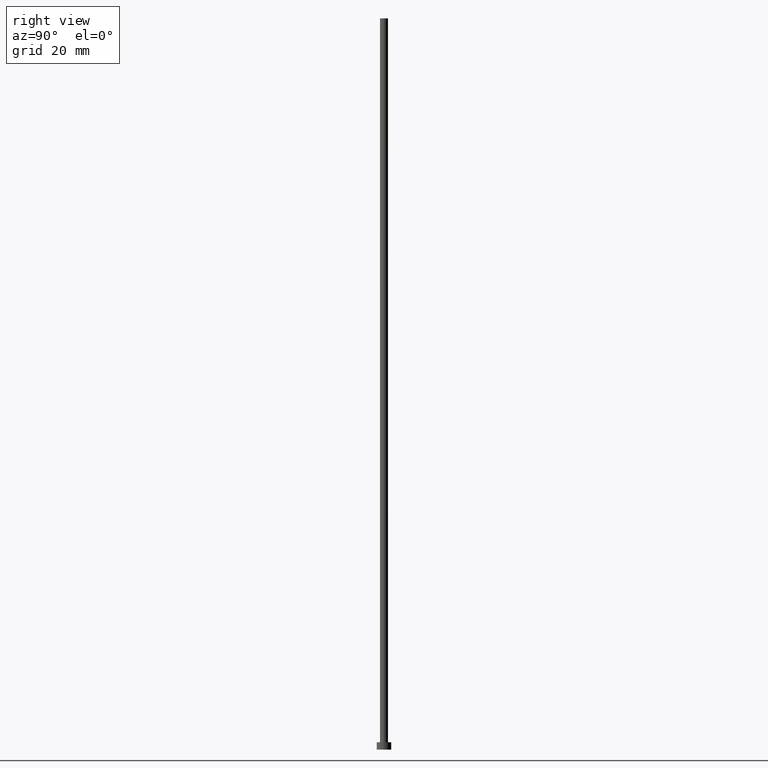
[diagram: clean part render]
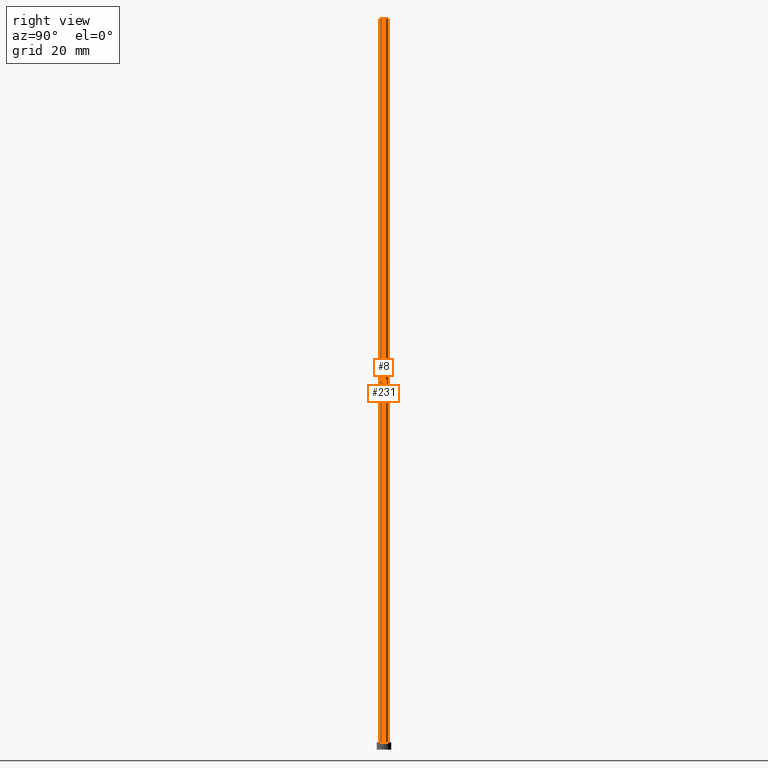
[diagram: same view with one multi-face feature highlighted, each face labeled with its STEP entity id]
A machine part, right view. The highlighted faces form ONE feature: a constant-radius fillet chain: 2 tangent blend faces with common blend radius 1.1 mm. The faces share edges in the B-rep.
Their STEP definitions:
[1] entity #8 (Cylinder):
#1 = DIRECTION ( 'NONE',  ( 0.000000000000000000, 0.000000000000000000, 1.000000000000000000 ) ) ;
#6 = VECTOR ( 'NONE', #230, 1000.000000000000000 ) ;
#8 = ADVANCED_FACE ( 'NONE', ( #102 ), #11, .T. ) ;
#9 = VERTEX_POINT ( 'NONE', #182 ) ;
#11 = CYLINDRICAL_SURFACE ( 'NONE', #69, 1.100000000000000089 ) ;
#20 = ORIENTED_EDGE ( 'NONE', *, *, #64, .T. ) ;
#28 = DIRECTION ( 'NONE',  ( -0.000000000000000000, -0.000000000000000000, -1.000000000000000000 ) ) ;
#31 = EDGE_CURVE ( 'NONE', #237, #171, #134, .T. ) ;
#33 = DIRECTION ( 'NONE',  ( -0.000000000000000000, -0.000000000000000000, -1.000000000000000000 ) ) ;
#35 = DIRECTION ( 'NONE',  ( 1.000000000000000000, 0.000000000000000000, 0.000000000000000000 ) ) ;
#42 = AXIS2_PLACEMENT_3D ( 'NONE', #93, #1, #77 ) ;
#56 = EDGE_CURVE ( 'NONE', #9, #171, #232, .T. ) ;
#64 = EDGE_CURVE ( 'NONE', #73, #237, #128, .T. ) ;
#69 = AXIS2_PLACEMENT_3D ( 'NONE', #202, #28, #239 ) ;
#71 = DIRECTION ( 'NONE',  ( 0.000000000000000000, 0.000000000000000000, 1.000000000000000000 ) ) ;
#73 = VERTEX_POINT ( 'NONE', #226 ) ;
#77 = DIRECTION ( 'NONE',  ( 1.000000000000000000, 0.000000000000000000, 0.000000000000000000 ) ) ;
#81 = ORIENTED_EDGE ( 'NONE', *, *, #56, .F. ) ;
#91 = CARTESIAN_POINT ( 'NONE',  ( -1.100000000000000089, 0.000000000000000000, 200.0000000000000000 ) ) ;
#93 = CARTESIAN_POINT ( 'NONE',  ( 0.000000000000000000, 0.000000000000000000, 200.0000000000000000 ) ) ;
#102 = FACE_OUTER_BOUND ( 'NONE', #124, .T. ) ;
#109 = CARTESIAN_POINT ( 'NONE',  ( 1.100000000000000089, 1.347111479062088503E-16, 2.000000000000000000 ) ) ;
#110 = VECTOR ( 'NONE', #33, 1000.000000000000000 ) ;
#122 = ORIENTED_EDGE ( 'NONE', *, *, #31, .T. ) ;
#124 = EDGE_LOOP ( 'NONE', ( #81, #158, #20, #122 ) ) ;
#128 = LINE ( 'NONE', #91, #6 ) ;
#134 = CIRCLE ( 'NONE', #223, 1.100000000000000089 ) ;
#144 = CARTESIAN_POINT ( 'NONE',  ( 1.100000000000000089, 1.347111479062088503E-16, 200.0000000000000000 ) ) ;
#158 = ORIENTED_EDGE ( 'NONE', *, *, #164, .F. ) ;
#164 = EDGE_CURVE ( 'NONE', #73, #9, #246, .T. ) ;
#171 = VERTEX_POINT ( 'NONE', #109 ) ;
#182 = CARTESIAN_POINT ( 'NONE',  ( 1.100000000000000089, 1.347111479062088503E-16, 200.0000000000000000 ) ) ;
#201 = CARTESIAN_POINT ( 'NONE',  ( -1.100000000000000089, 0.000000000000000000, 2.000000000000000000 ) ) ;
#202 = CARTESIAN_POINT ( 'NONE',  ( 0.000000000000000000, 0.000000000000000000, 200.0000000000000000 ) ) ;
#223 = AXIS2_PLACEMENT_3D ( 'NONE', #251, #71, #35 ) ;
#226 = CARTESIAN_POINT ( 'NONE',  ( -1.100000000000000089, 0.000000000000000000, 200.0000000000000000 ) ) ;
#230 = DIRECTION ( 'NONE',  ( -0.000000000000000000, -0.000000000000000000, -1.000000000000000000 ) ) ;
#232 = LINE ( 'NONE', #144, #110 ) ;
#237 = VERTEX_POINT ( 'NONE', #201 ) ;
#239 = DIRECTION ( 'NONE',  ( -1.000000000000000000, 0.000000000000000000, 0.000000000000000000 ) ) ;
#246 = CIRCLE ( 'NONE', #42, 1.100000000000000089 ) ;
#251 = CARTESIAN_POINT ( 'NONE',  ( 0.000000000000000000, 0.000000000000000000, 2.000000000000000000 ) ) ;
[2] entity #231 (Cylinder):
#6 = VECTOR ( 'NONE', #230, 1000.000000000000000 ) ;
#9 = VERTEX_POINT ( 'NONE', #182 ) ;
#17 = AXIS2_PLACEMENT_3D ( 'NONE', #167, #72, #197 ) ;
#22 = CYLINDRICAL_SURFACE ( 'NONE', #219, 1.100000000000000089 ) ;
#33 = DIRECTION ( 'NONE',  ( -0.000000000000000000, -0.000000000000000000, -1.000000000000000000 ) ) ;
#45 = DIRECTION ( 'NONE',  ( -1.000000000000000000, 0.000000000000000000, 0.000000000000000000 ) ) ;
#54 = CIRCLE ( 'NONE', #87, 1.100000000000000089 ) ;
#56 = EDGE_CURVE ( 'NONE', #9, #171, #232, .T. ) ;
#64 = EDGE_CURVE ( 'NONE', #73, #237, #128, .T. ) ;
#72 = DIRECTION ( 'NONE',  ( 0.000000000000000000, 0.000000000000000000, 1.000000000000000000 ) ) ;
#73 = VERTEX_POINT ( 'NONE', #226 ) ;
#87 = AXIS2_PLACEMENT_3D ( 'NONE', #204, #174, #155 ) ;
#91 = CARTESIAN_POINT ( 'NONE',  ( -1.100000000000000089, 0.000000000000000000, 200.0000000000000000 ) ) ;
#94 = ORIENTED_EDGE ( 'NONE', *, *, #106, .T. ) ;
#96 = DIRECTION ( 'NONE',  ( -0.000000000000000000, -0.000000000000000000, -1.000000000000000000 ) ) ;
#106 = EDGE_CURVE ( 'NONE', #171, #237, #54, .T. ) ;
#109 = CARTESIAN_POINT ( 'NONE',  ( 1.100000000000000089, 1.347111479062088503E-16, 2.000000000000000000 ) ) ;
#110 = VECTOR ( 'NONE', #33, 1000.000000000000000 ) ;
#128 = LINE ( 'NONE', #91, #6 ) ;
#138 = EDGE_LOOP ( 'NONE', ( #254, #154, #94, #220 ) ) ;
#144 = CARTESIAN_POINT ( 'NONE',  ( 1.100000000000000089, 1.347111479062088503E-16, 200.0000000000000000 ) ) ;
#151 = CIRCLE ( 'NONE', #17, 1.100000000000000089 ) ;
#154 = ORIENTED_EDGE ( 'NONE', *, *, #56, .T. ) ;
#155 = DIRECTION ( 'NONE',  ( 1.000000000000000000, 0.000000000000000000, 0.000000000000000000 ) ) ;
#167 = CARTESIAN_POINT ( 'NONE',  ( 0.000000000000000000, 0.000000000000000000, 200.0000000000000000 ) ) ;
#171 = VERTEX_POINT ( 'NONE', #109 ) ;
#174 = DIRECTION ( 'NONE',  ( 0.000000000000000000, 0.000000000000000000, 1.000000000000000000 ) ) ;
#182 = CARTESIAN_POINT ( 'NONE',  ( 1.100000000000000089, 1.347111479062088503E-16, 200.0000000000000000 ) ) ;
#192 = CARTESIAN_POINT ( 'NONE',  ( 0.000000000000000000, 0.000000000000000000, 200.0000000000000000 ) ) ;
#197 = DIRECTION ( 'NONE',  ( 1.000000000000000000, 0.000000000000000000, 0.000000000000000000 ) ) ;
#201 = CARTESIAN_POINT ( 'NONE',  ( -1.100000000000000089, 0.000000000000000000, 2.000000000000000000 ) ) ;
#204 = CARTESIAN_POINT ( 'NONE',  ( 0.000000000000000000, 0.000000000000000000, 2.000000000000000000 ) ) ;
#206 = FACE_OUTER_BOUND ( 'NONE', #138, .T. ) ;
#219 = AXIS2_PLACEMENT_3D ( 'NONE', #192, #96, #45 ) ;
#220 = ORIENTED_EDGE ( 'NONE', *, *, #64, .F. ) ;
#221 = EDGE_CURVE ( 'NONE', #9, #73, #151, .T. ) ;
#226 = CARTESIAN_POINT ( 'NONE',  ( -1.100000000000000089, 0.000000000000000000, 200.0000000000000000 ) ) ;
#230 = DIRECTION ( 'NONE',  ( -0.000000000000000000, -0.000000000000000000, -1.000000000000000000 ) ) ;
#231 = ADVANCED_FACE ( 'NONE', ( #206 ), #22, .T. ) ;
#232 = LINE ( 'NONE', #144, #110 ) ;
#237 = VERTEX_POINT ( 'NONE', #201 ) ;
#254 = ORIENTED_EDGE ( 'NONE', *, *, #221, .F. ) ;